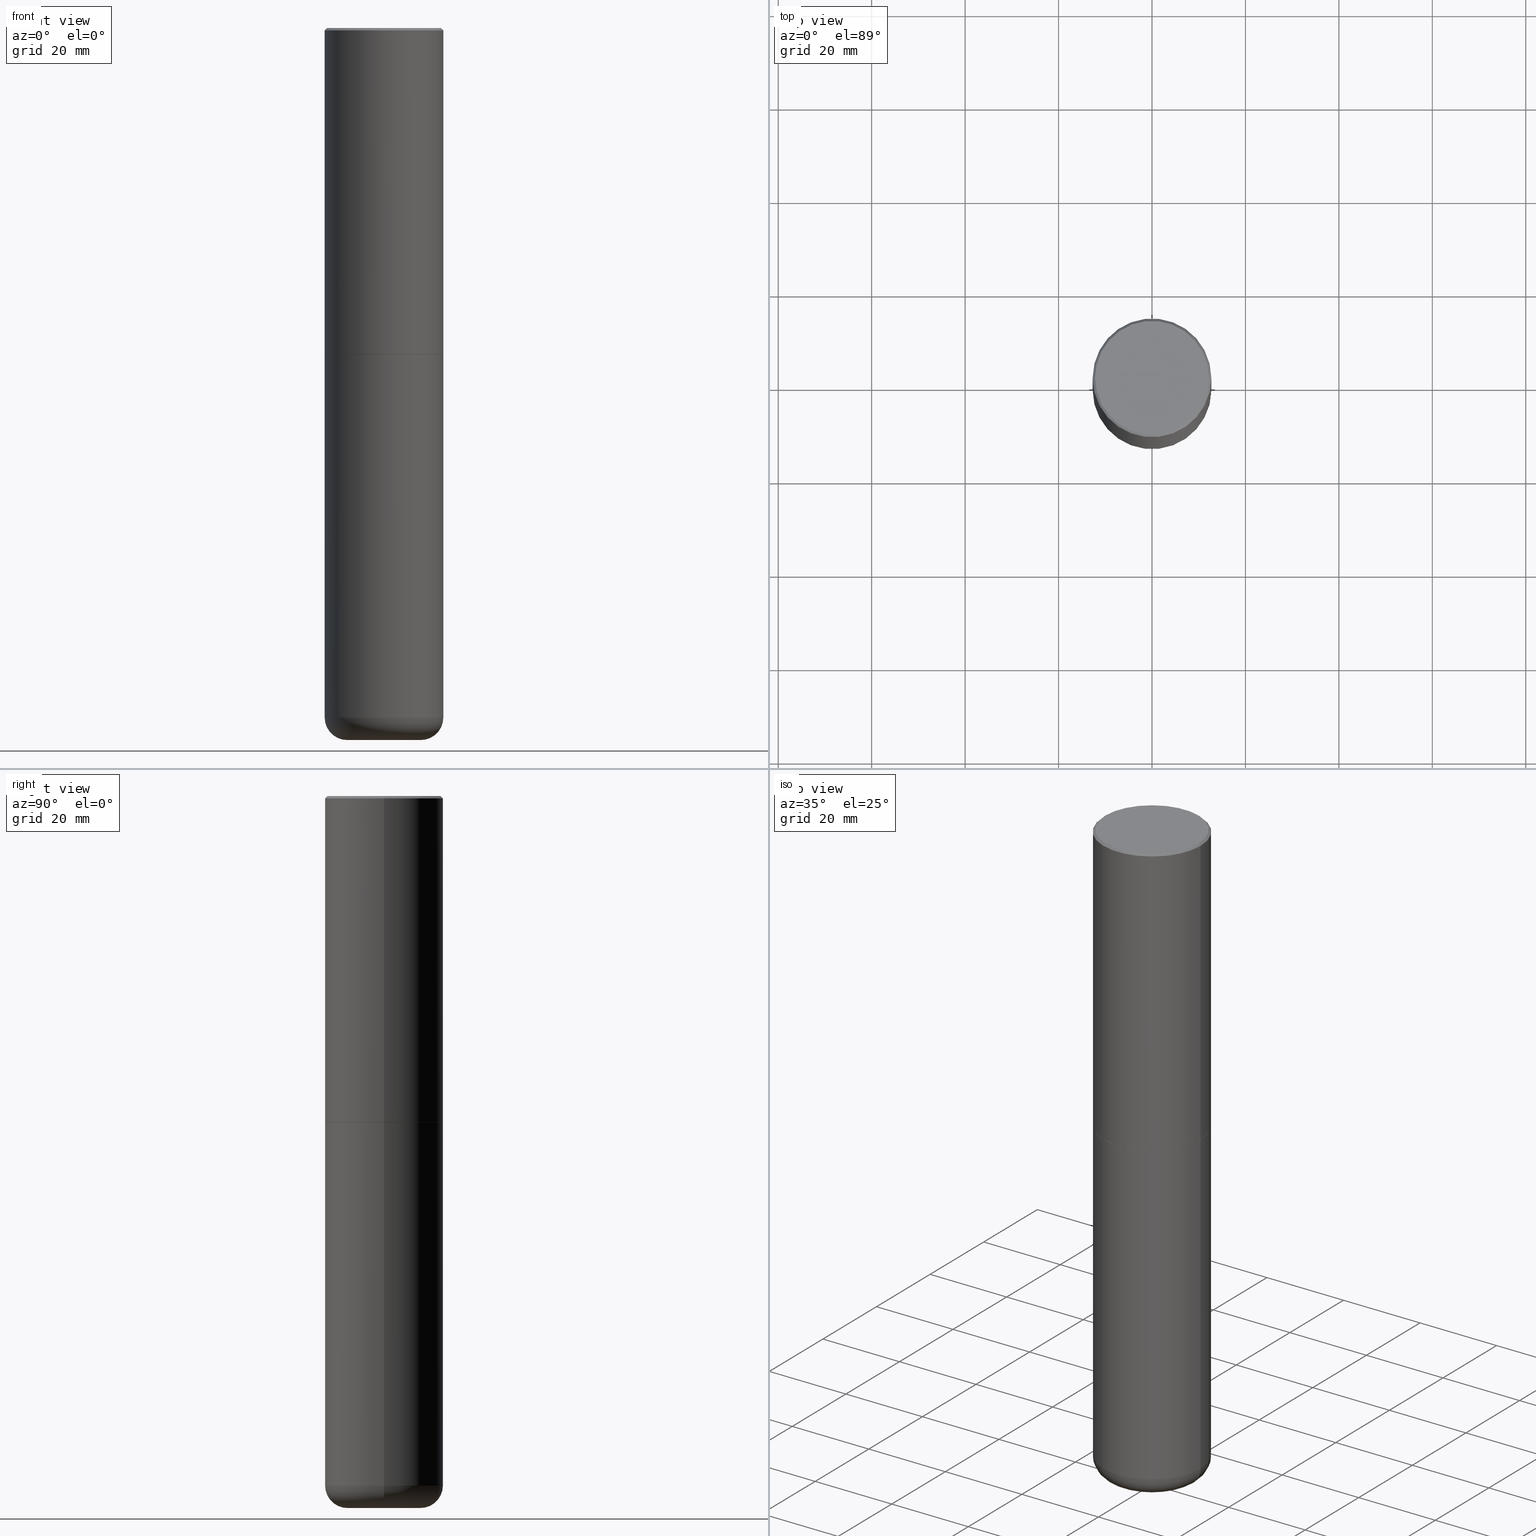
[diagram: canonical four-view strip — front | top / right | iso, engineering-drawing reading convention]
A machine part, canonical four-view strip (front | top / right | iso — engineering-drawing reading convention). The complete STEP part file that produces these views, byte-faithful:
ISO-10303-21;
HEADER;
FILE_DESCRIPTION (( 'STEP AP203' ),
    '1' );
FILE_NAME ('35743.STEP',
    '2022-11-02T20:59:04',
    ( '' ),
    ( '' ),
    'SwSTEP 2.0',
    'SolidWorks 2022',
    '' );
FILE_SCHEMA (( 'CONFIG_CONTROL_DESIGN' ));
ENDSEC;

DATA;
#1 = ADVANCED_FACE ( 'NONE', ( #123 ), #99, .F. ) ;
#2 = DIRECTION ( 'NONE',  ( 1.000000000000000000, -6.982962677686269077E-15, 4.883557194083113462E-29 ) ) ;
#3 = ADVANCED_FACE ( 'NONE', ( #47 ), #91, .T. ) ;
#4 = DIRECTION ( 'NONE',  ( -1.000000000000000000, 6.982962677686266711E-15, 0.000000000000000000 ) ) ;
#5 = EDGE_LOOP ( 'NONE', ( #369, #324, #269, #42 ) ) ;
#6 = CONICAL_SURFACE ( 'NONE', #389, 0.2550119582553103115, 1.535889741755007698 ) ;
#7 = DIRECTION ( 'NONE',  ( 1.000000000000000000, -6.982962677686266711E-15, 4.876176775795935793E-29 ) ) ;
#8 = AXIS2_PLACEMENT_3D ( 'NONE', #250, #162, #203 ) ;
#9 = ORIENTED_EDGE ( 'NONE', *, *, #283, .T. ) ;
#10 = CARTESIAN_POINT ( 'NONE',  ( 0.000000000000000000, 0.000000000000000000, 0.000000000000000000 ) ) ;
#11 = CYLINDRICAL_SURFACE ( 'NONE', #425, 0.4999999999999995004 ) ;
#12 = DIRECTION ( 'NONE',  ( -1.000000000000000000, 6.982962677686266711E-15, 0.000000000000000000 ) ) ;
#13 = DIRECTION ( 'NONE',  ( 1.000000000000000000, -6.982962677686265133E-15, 0.000000000000000000 ) ) ;
#14 = AXIS2_PLACEMENT_3D ( 'NONE', #264, #378, #268 ) ;
#15 = CIRCLE ( 'NONE', #163, 0.5000000000000000000 ) ;
#16 = MANIFOLD_SOLID_BREP ( 'Body-Move/Copy2[1]', #59 ) ;
#17 = CC_DESIGN_APPROVAL ( #124, ( #293 ) ) ;
#18 = ADVANCED_FACE ( 'NONE', ( #352 ), #11, .T. ) ;
#19 = DIRECTION ( 'NONE',  ( 0.9999619230641714207, -6.890705306874752753E-15, -0.008726535498348361383 ) ) ;
#20 = EDGE_CURVE ( 'NONE', #288, #88, #236, .T. ) ;
#21 = EDGE_CURVE ( 'NONE', #255, #139, #158, .T. ) ;
#22 = EDGE_LOOP ( 'NONE', ( #441, #301, #184 ) ) ;
#23 = APPROVAL_STATUS ( 'not_yet_approved' ) ;
#24 = APPLICATION_CONTEXT ( 'configuration controlled 3d designs of mechanical parts and assemblies' ) ;
#25 = ORIENTED_EDGE ( 'NONE', *, *, #138, .F. ) ;
#26 = PERSON_AND_ORGANIZATION ( #190, #240 ) ;
#27 = AXIS2_PLACEMENT_3D ( 'NONE', #303, #181, #146 ) ;
#28 = APPLICATION_PROTOCOL_DEFINITION ( 'international standard', 'config_control_design', 1994, #86 ) ;
#29 = ORIENTED_EDGE ( 'NONE', *, *, #342, .F. ) ;
#30 = APPROVAL_DATE_TIME ( #290, #124 ) ;
#31 = ORIENTED_EDGE ( 'NONE', *, *, #113, .F. ) ;
#32 = DATE_TIME_ROLE ( 'classification_date' ) ;
#33 = EDGE_CURVE ( 'NONE', #139, #80, #307, .T. ) ;
#34 = ORIENTED_EDGE ( 'NONE', *, *, #411, .F. ) ;
#35 = EDGE_CURVE ( 'NONE', #145, #88, #328, .T. ) ;
#36 = VECTOR ( 'NONE', #51, 39.37007874015747433 ) ;
#37 = DIRECTION ( 'NONE',  ( -2.445468806185136877E-29, 3.491481338843145188E-15, 1.000000000000000000 ) ) ;
#38 = FACE_OUTER_BOUND ( 'NONE', #154, .T. ) ;
#39 = FACE_OUTER_BOUND ( 'NONE', #22, .T. ) ;
#40 = EDGE_CURVE ( 'NONE', #126, #334, #131, .T. ) ;
#41 = DIRECTION ( 'NONE',  ( 1.000000000000000000, -6.982962677686266711E-15, 0.000000000000000000 ) ) ;
#42 = ORIENTED_EDGE ( 'NONE', *, *, #488, .F. ) ;
#43 = AXIS2_PLACEMENT_3D ( 'NONE', #229, #481, #232 ) ;
#44 = CIRCLE ( 'NONE', #478, 0.3083419582553103000 ) ;
#45 = CARTESIAN_POINT ( 'NONE',  ( -0.5000000000000000000, -1.139083908121469718E-14, -5.810007234617806660 ) ) ;
#46 = CYLINDRICAL_SURFACE ( 'NONE', #197, 0.5000000000000000000 ) ;
#47 = FACE_OUTER_BOUND ( 'NONE', #355, .T. ) ;
#48 = DIRECTION ( 'NONE',  ( 1.000000000000000000, -6.982962677686269077E-15, 4.883557194083113462E-29 ) ) ;
#49 = VECTOR ( 'NONE', #19, 39.37007874015748854 ) ;
#50 = ORIENTED_EDGE ( 'NONE', *, *, #435, .F. ) ;
#51 = DIRECTION ( 'NONE',  ( -0.9993908270190957621, 6.856857904024550159E-15, -0.03489949670250330760 ) ) ;
#52 = CARTESIAN_POINT ( 'NONE',  ( 1.467167470649067006E-28, -2.094726308416916987E-14, -5.999534596140719600 ) ) ;
#53 = EDGE_CURVE ( 'NONE', #135, #482, #170, .T. ) ;
#54 = DIRECTION ( 'NONE',  ( 2.445468806185136597E-29, -3.491481338843145583E-15, -1.000000000000000000 ) ) ;
#55 = PLANE ( 'NONE',  #491 ) ;
#56 = DIRECTION ( 'NONE',  ( 0.9993908270190957621, -6.978169709227549377E-15, -0.03489949670250330760 ) ) ;
#57 = EDGE_CURVE ( 'NONE', #139, #126, #118, .T. ) ;
#58 = PRODUCT_DEFINITION_SHAPE ( 'NONE', 'NONE',  #351 ) ;
#59 = CLOSED_SHELL ( 'NONE', ( #1, #171, #219, #119, #429, #231, #204, #260, #433 ) ) ;
#60 = AXIS2_PLACEMENT_3D ( 'NONE', #200, #98, #93 ) ;
#61 = EDGE_CURVE ( 'NONE', #148, #470, #68, .T. ) ;
#62 = DIRECTION ( 'NONE',  ( -2.445468806185136877E-29, 3.491481338843145188E-15, 1.000000000000000000 ) ) ;
#63 = CARTESIAN_POINT ( 'NONE',  ( 0.4799999999999988165, -3.396558832296475394E-15, 1.707404996042524007E-17 ) ) ;
#64 = ORIENTED_EDGE ( 'NONE', *, *, #53, .T. ) ;
#65 = DATE_AND_TIME ( #254, #156 ) ;
#66 = EDGE_LOOP ( 'NONE', ( #216, #381, #363, #149 ) ) ;
#67 = DATE_AND_TIME ( #246, #150 ) ;
#68 = CIRCLE ( 'NONE', #43, 0.5000000000000000000 ) ;
#69 = EDGE_LOOP ( 'NONE', ( #50, #177, #367, #372 ) ) ;
#70 = CALENDAR_DATE ( 2022, 2, 11 ) ;
#71 =( NAMED_UNIT ( * ) PLANE_ANGLE_UNIT ( ) SI_UNIT ( $, .RADIAN. ) );
#72 = CARTESIAN_POINT ( 'NONE',  ( 0.5000000000000000000, -3.491481338843133355E-15, 2.438088387897967896E-29 ) ) ;
#73 = VERTEX_POINT ( 'NONE', #452 ) ;
#74 = CARTESIAN_POINT ( 'NONE',  ( 0.5000000000000000000, -2.377701317705487499E-14, -5.810007234617806660 ) ) ;
#75 = TOROIDAL_SURFACE ( 'NONE', #348, 0.3100000000000003864, 0.1900000000000002520 ) ;
#76 = CC_DESIGN_PERSON_AND_ORGANIZATION_ASSIGNMENT ( #434, #370, ( #94 ) ) ;
#77 = AXIS2_PLACEMENT_3D ( 'NONE', #249, #230, #407 ) ;
#78 = DIRECTION ( 'NONE',  ( 2.445468806185136597E-29, -3.491481338843145583E-15, -1.000000000000000000 ) ) ;
#79 = DIRECTION ( 'NONE',  ( -2.445468806185136597E-29, 3.491481338843145583E-15, 1.000000000000000000 ) ) ;
#80 = VERTEX_POINT ( 'NONE', #144 ) ;
#81 = DIRECTION ( 'NONE',  ( -2.445468806185136597E-29, 3.491481338843145583E-15, 1.000000000000000000 ) ) ;
#82 = VECTOR ( 'NONE', #56, 39.37007874015747433 ) ;
#83 = CARTESIAN_POINT ( 'NONE',  ( -0.2550119582553103115, -1.916652409730864930E-14, -5.999534596140719600 ) ) ;
#84 = ORIENTED_EDGE ( 'NONE', *, *, #35, .T. ) ;
#85 = DIRECTION ( 'NONE',  ( -0.9999619230641714207, 6.952228252019259966E-15, -0.008726535498348361383 ) ) ;
#86 = APPLICATION_CONTEXT ( 'configuration controlled 3d designs of mechanical parts and assemblies' ) ;
#87 = FACE_OUTER_BOUND ( 'NONE', #297, .T. ) ;
#88 = VERTEX_POINT ( 'NONE', #259 ) ;
#89 = EDGE_CURVE ( 'NONE', #470, #110, #296, .T. ) ;
#90 = EDGE_CURVE ( 'NONE', #470, #148, #396, .T. ) ;
#91 = CONICAL_SURFACE ( 'NONE', #336, 0.4999999999999990563, 0.7853981633974477239 ) ;
#92 = DIRECTION ( 'NONE',  ( -2.445468806185136597E-29, 3.491481338843145583E-15, 1.000000000000000000 ) ) ;
#93 = DIRECTION ( 'NONE',  ( 1.000000000000000000, -6.982962677686265133E-15, 0.000000000000000000 ) ) ;
#94 = PRODUCT_DEFINITION_FORMATION_WITH_SPECIFIED_SOURCE ( 'ANY', '', #208, .NOT_KNOWN. ) ;
#95 = DIRECTION ( 'NONE',  ( 1.000000000000000000, -6.982962677686266711E-15, 0.000000000000000000 ) ) ;
#96 = DIRECTION ( 'NONE',  ( -2.445468806185136597E-29, 3.491481338843145583E-15, 1.000000000000000000 ) ) ;
#97 = EDGE_CURVE ( 'NONE', #334, #126, #187, .T. ) ;
#98 = DIRECTION ( 'NONE',  ( -2.445468806185136597E-29, 3.491481338843145583E-15, 1.000000000000000000 ) ) ;
#99 = CONICAL_SURFACE ( 'NONE', #278, 0.3083419582553103000, 1.562069680534950544 ) ;
#100 = VECTOR ( 'NONE', #164, 39.37007874015748143 ) ;
#101 = PERSON_AND_ORGANIZATION ( #190, #240 ) ;
#102 = ORIENTED_EDGE ( 'NONE', *, *, #57, .T. ) ;
#103 =( CONVERSION_BASED_UNIT ( 'INCH', #371 ) LENGTH_UNIT ( ) NAMED_UNIT ( #345 ) );
#104 = ORIENTED_EDGE ( 'NONE', *, *, #97, .F. ) ;
#105 = APPROVAL_DATE_TIME ( #65, #366 ) ;
#106 = ORIENTED_EDGE ( 'NONE', *, *, #179, .F. ) ;
#107 = CONICAL_SURFACE ( 'NONE', #60, 0.4989999999999999991, 0.7853981633972775267 ) ;
#108 = DATE_TIME_ROLE ( 'creation_date' ) ;
#109 = CARTESIAN_POINT ( 'NONE',  ( -4.175405657340879278E-46, 5.961372681521788801E-32, 1.707404996040164512E-17 ) ) ;
#110 = VERTEX_POINT ( 'NONE', #151 ) ;
#111 = APPROVAL_STATUS ( 'not_yet_approved' ) ;
#112 = DIRECTION ( 'NONE',  ( 1.000000000000000000, -6.982962677686265133E-15, 0.000000000000000000 ) ) ;
#113 = EDGE_CURVE ( 'NONE', #88, #148, #314, .T. ) ;
#114 = CARTESIAN_POINT ( 'NONE',  ( 6.725039217009127883E-29, -9.601573681818654592E-15, -2.750000000000000888 ) ) ;
#115 = VERTEX_POINT ( 'NONE', #444 ) ;
#116 = DIRECTION ( 'NONE',  ( 1.000000000000000000, -6.982962677686269866E-15, 0.000000000000000000 ) ) ;
#117 = ORIENTED_EDGE ( 'NONE', *, *, #418, .F. ) ;
#118 = LINE ( 'NONE', #147, #196 ) ;
#119 = ADVANCED_FACE ( 'NONE', ( #39 ), #6, .F. ) ;
#120 = CARTESIAN_POINT ( 'NONE',  ( 1.420819145596781617E-28, -2.028553183821174163E-14, -5.810007234617806660 ) ) ;
#121 = CIRCLE ( 'NONE', #455, 0.2550119582553103115 ) ;
#122 = CARTESIAN_POINT ( 'NONE',  ( 3.491481338843200408E-15, 0.4999999999999903411, -2.750000000000002220 ) ) ;
#123 = FACE_OUTER_BOUND ( 'NONE', #66, .T. ) ;
#124 = APPROVAL ( #111, 'UNSPECIFIED' ) ;
#125 = DIRECTION ( 'NONE',  ( 0.7071067811865471286, -7.319954787623254468E-15, -0.7071067811865479058 ) ) ;
#126 = VERTEX_POINT ( 'NONE', #447 ) ;
#127 = AXIS2_PLACEMENT_3D ( 'NONE', #331, #376, #409 ) ;
#128 = CARTESIAN_POINT ( 'NONE',  ( 1.467281283711081734E-28, -2.094888803305886955E-14, -5.999999999999999112 ) ) ;
#129 = DIRECTION ( 'NONE',  ( 1.000000000000000000, -6.982962677686263555E-15, 0.000000000000000000 ) ) ;
#130 = CARTESIAN_POINT ( 'NONE',  ( -0.5000000000000000000, 3.552713678800500929E-15, -2.459467545127452891E-29 ) ) ;
#131 = CIRCLE ( 'NONE', #226, 0.4999999999999990563 ) ;
#132 = AXIS2_PLACEMENT_3D ( 'NONE', #267, #483, #228 ) ;
#133 = ORIENTED_EDGE ( 'NONE', *, *, #90, .T. ) ;
#134 = CYLINDRICAL_SURFACE ( 'NONE', #77, 0.4999999999999995004 ) ;
#135 = VERTEX_POINT ( 'NONE', #186 ) ;
#136 = DATE_AND_TIME ( #142, #207 ) ;
#137 = EDGE_CURVE ( 'NONE', #395, #288, #121, .T. ) ;
#138 = EDGE_CURVE ( 'NONE', #287, #255, #247, .T. ) ;
#139 = VERTEX_POINT ( 'NONE', #377 ) ;
#140 = SHAPE_DEFINITION_REPRESENTATION ( #58, #454 ) ;
#141 = ORIENTED_EDGE ( 'NONE', *, *, #193, .F. ) ;
#142 = CALENDAR_DATE ( 2022, 2, 11 ) ;
#143 = LOCAL_TIME ( 16, 59, 4.000000000000000000, #475 ) ;
#144 = CARTESIAN_POINT ( 'NONE',  ( -0.5000000000000000000, -1.281242234827831779E-15, -2.749000000000000554 ) ) ;
#145 = VERTEX_POINT ( 'NONE', #337 ) ;
#146 = DIRECTION ( 'NONE',  ( 1.000000000000000000, -6.982962677686265133E-15, 0.000000000000000000 ) ) ;
#147 = CARTESIAN_POINT ( 'NONE',  ( 0.4999999999999995004, -3.491481338843130200E-15, 2.438088387897965374E-29 ) ) ;
#148 = VERTEX_POINT ( 'NONE', #45 ) ;
#149 = ORIENTED_EDGE ( 'NONE', *, *, #20, .F. ) ;
#150 = LOCAL_TIME ( 16, 59, 4.000000000000000000, #349 ) ;
#151 = CARTESIAN_POINT ( 'NONE',  ( 0.5000000000000000000, -1.309305502066178637E-14, -2.750000000000000444 ) ) ;
#152 = PLANE ( 'NONE',  #281 ) ;
#153 = DIRECTION ( 'NONE',  ( -2.438088387897960049E-29, 3.491481338843145188E-15, 1.000000000000000000 ) ) ;
#154 = EDGE_LOOP ( 'NONE', ( #84, #321, #220, #106 ) ) ;
#155 = VECTOR ( 'NONE', #85, 39.37007874015748854 ) ;
#156 = LOCAL_TIME ( 16, 59, 4.000000000000000000, #320 ) ;
#157 = APPROVAL_PERSON_ORGANIZATION ( #26, #124, #368 ) ;
#158 = LINE ( 'NONE', #424, #239 ) ;
#159 = DIRECTION ( 'NONE',  ( -2.445468806185136597E-29, 3.491481338843145583E-15, 1.000000000000000000 ) ) ;
#160 = CARTESIAN_POINT ( 'NONE',  ( 1.467281283711081734E-28, -2.094888803305886955E-14, -5.999999999999999112 ) ) ;
#161 = CYLINDRICAL_SURFACE ( 'NONE', #465, 0.5000000000000000000 ) ;
#162 = DIRECTION ( 'NONE',  ( -2.445468806185136597E-29, 3.491481338843145583E-15, 1.000000000000000000 ) ) ;
#163 = AXIS2_PLACEMENT_3D ( 'NONE', #365, #480, #211 ) ;
#164 = DIRECTION ( 'NONE',  ( -0.7071067811864267805, 7.493145998869918709E-15, 0.7071067811866682540 ) ) ;
#165 = FACE_OUTER_BOUND ( 'NONE', #5, .T. ) ;
#166 = CC_DESIGN_PERSON_AND_ORGANIZATION_ASSIGNMENT ( #213, #439, ( #351 ) ) ;
#167 = LINE ( 'NONE', #130, #319 ) ;
#168 = EDGE_LOOP ( 'NONE', ( #326, #210, #450, #432 ) ) ;
#169 = APPROVAL_ROLE ( '' ) ;
#170 = CIRCLE ( 'NONE', #214, 0.4799999999999988165 ) ;
#171 = ADVANCED_FACE ( 'NONE', ( #38 ), #75, .T. ) ;
#172 =( GEOMETRIC_REPRESENTATION_CONTEXT ( 3 ) GLOBAL_UNCERTAINTY_ASSIGNED_CONTEXT ( ( #462 ) ) GLOBAL_UNIT_ASSIGNED_CONTEXT ( ( #103, #71, #443 ) ) REPRESENTATION_CONTEXT ( 'NONE', 'WORKASPACE' ) );
#173 = ORIENTED_EDGE ( 'NONE', *, *, #89, .T. ) ;
#174 = CARTESIAN_POINT ( 'NONE',  ( -0.4989999999999999991, -6.055965430375753882E-15, -2.750000000000000888 ) ) ;
#175 = EDGE_LOOP ( 'NONE', ( #141, #403, #383, #406 ) ) ;
#176 = CARTESIAN_POINT ( 'NONE',  ( 0.000000000000000000, 0.000000000000000000, 0.000000000000000000 ) ) ;
#177 = ORIENTED_EDGE ( 'NONE', *, *, #137, .T. ) ;
#178 = PERSON_AND_ORGANIZATION_ROLE ( 'design_supplier' ) ;
#179 = EDGE_CURVE ( 'NONE', #145, #470, #397, .T. ) ;
#180 = ORIENTED_EDGE ( 'NONE', *, *, #466, .F. ) ;
#181 = DIRECTION ( 'NONE',  ( -2.445468806185136597E-29, 3.491481338843145583E-15, 1.000000000000000000 ) ) ;
#182 = DIRECTION ( 'NONE',  ( -2.445468806185136597E-29, 3.491481338843145583E-15, 1.000000000000000000 ) ) ;
#183 = CARTESIAN_POINT ( 'NONE',  ( 1.467167470649067006E-28, -2.094726308416916987E-14, -5.999534596140719600 ) ) ;
#184 = ORIENTED_EDGE ( 'NONE', *, *, #332, .F. ) ;
#185 = FACE_OUTER_BOUND ( 'NONE', #168, .T. ) ;
#186 = CARTESIAN_POINT ( 'NONE',  ( -0.4799999999999988165, 3.386736898677831703E-15, 1.707404996037808406E-17 ) ) ;
#187 = CIRCLE ( 'NONE', #464, 0.4999999999999990563 ) ;
#188 = CONICAL_SURFACE ( 'NONE', #27, 0.4989999999999999991, 0.7853981633972775267 ) ;
#189 = ORIENTED_EDGE ( 'NONE', *, *, #89, .F. ) ;
#190 = PERSON ( 'UNSPECIFIED', 'UNSPECIFIED', 'UNSPECIFIED', ('UNSPECIFIED'), ('UNSPECIFIED'), ('UNSPECIFIED') ) ;
#191 = FACE_OUTER_BOUND ( 'NONE', #175, .T. ) ;
#192 = ORIENTED_EDGE ( 'NONE', *, *, #317, .T. ) ;
#193 = EDGE_CURVE ( 'NONE', #482, #126, #460, .T. ) ;
#194 = EDGE_CURVE ( 'NONE', #115, #288, #202, .T. ) ;
#195 = CARTESIAN_POINT ( 'NONE',  ( 0.000000000000000000, 0.000000000000000000, 0.000000000000000000 ) ) ;
#196 = VECTOR ( 'NONE', #223, 39.37007874015748143 ) ;
#197 = AXIS2_PLACEMENT_3D ( 'NONE', #276, #234, #7 ) ;
#198 = FACE_OUTER_BOUND ( 'NONE', #263, .T. ) ;
#199 = DIRECTION ( 'NONE',  ( 2.445468806185136597E-29, -3.491481338843145583E-15, -1.000000000000000000 ) ) ;
#200 = CARTESIAN_POINT ( 'NONE',  ( 6.725039217009127883E-29, -9.601573681818654592E-15, -2.750000000000000888 ) ) ;
#201 = CARTESIAN_POINT ( 'NONE',  ( 4.890937612370322204E-31, -6.982962677686361867E-17, -0.02000000000000020164 ) ) ;
#202 = LINE ( 'NONE', #458, #36 ) ;
#203 = DIRECTION ( 'NONE',  ( 1.000000000000000000, -6.982962677686266711E-15, 0.000000000000000000 ) ) ;
#204 = ADVANCED_FACE ( 'NONE', ( #87 ), #46, .T. ) ;
#205 = CONICAL_SURFACE ( 'NONE', #329, 0.4999999999999990563, 0.7853981633974477239 ) ;
#206 = CARTESIAN_POINT ( 'NONE',  ( 0.3083419582553103000, -2.306426742029837879E-14, -5.999999999999999112 ) ) ;
#207 = LOCAL_TIME ( 16, 59, 4.000000000000000000, #400 ) ;
#208 = PRODUCT ( '35743', '35743', '', ( #392 ) ) ;
#209 = LINE ( 'NONE', #360, #379 ) ;
#210 = ORIENTED_EDGE ( 'NONE', *, *, #300, .T. ) ;
#211 = DIRECTION ( 'NONE',  ( 1.000000000000000000, -6.982962677686266711E-15, 0.000000000000000000 ) ) ;
#212 = ORIENTED_EDGE ( 'NONE', *, *, #61, .T. ) ;
#213 = PERSON_AND_ORGANIZATION ( #190, #240 ) ;
#214 = AXIS2_PLACEMENT_3D ( 'NONE', #109, #410, #484 ) ;
#215 = VECTOR ( 'NONE', #125, 39.37007874015748143 ) ;
#216 = ORIENTED_EDGE ( 'NONE', *, *, #332, .T. ) ;
#217 = SECURITY_CLASSIFICATION_LEVEL ( 'unclassified' ) ;
#218 = APPLICATION_PROTOCOL_DEFINITION ( 'international standard', 'config_control_design', 1994, #24 ) ;
#219 = ADVANCED_FACE ( 'NONE', ( #453 ), #161, .T. ) ;
#220 = ORIENTED_EDGE ( 'NONE', *, *, #90, .F. ) ;
#221 = APPROVAL_DATE_TIME ( #67, #394 ) ;
#222 = DATE_AND_TIME ( #325, #302 ) ;
#223 = DIRECTION ( 'NONE',  ( -2.445468806185136877E-29, 3.491481338843145188E-15, 1.000000000000000000 ) ) ;
#224 = ORIENTED_EDGE ( 'NONE', *, *, #137, .F. ) ;
#225 = DIRECTION ( 'NONE',  ( -1.000000000000000000, 6.982962677686269866E-15, 0.000000000000000000 ) ) ;
#226 = AXIS2_PLACEMENT_3D ( 'NONE', #359, #333, #41 ) ;
#227 = CIRCLE ( 'NONE', #271, 0.4989999999999999991 ) ;
#228 = DIRECTION ( 'NONE',  ( 1.000000000000000000, -6.982962677686267499E-15, 4.876431871984425487E-29 ) ) ;
#229 = CARTESIAN_POINT ( 'NONE',  ( 1.420819145596781617E-28, -2.028553183821174163E-14, -5.810007234617806660 ) ) ;
#230 = DIRECTION ( 'NONE',  ( -2.445468806185136597E-29, 3.491481338843145583E-15, 1.000000000000000000 ) ) ;
#231 = ADVANCED_FACE ( 'NONE', ( #346 ), #55, .F. ) ;
#232 = DIRECTION ( 'NONE',  ( 1.000000000000000000, -6.982962677686262766E-15, 0.000000000000000000 ) ) ;
#233 = DIRECTION ( 'NONE',  ( 1.000000000000000000, -6.982962677686266711E-15, 0.000000000000000000 ) ) ;
#234 = DIRECTION ( 'NONE',  ( -2.445468806185136597E-29, 3.491481338843145583E-15, 1.000000000000000000 ) ) ;
#235 = FACE_OUTER_BOUND ( 'NONE', #361, .T. ) ;
#236 = LINE ( 'NONE', #417, #155 ) ;
#237 = DIRECTION ( 'NONE',  ( 2.438088387897960049E-29, -3.491481338843145188E-15, -1.000000000000000000 ) ) ;
#238 = ORIENTED_EDGE ( 'NONE', *, *, #40, .F. ) ;
#239 = VECTOR ( 'NONE', #311, 39.37007874015748143 ) ;
#240 = ORGANIZATION ( 'UNSPECIFIED', 'UNSPECIFIED', '' ) ;
#241 = DIRECTION ( 'NONE',  ( 1.000000000000000000, -6.982962677686266711E-15, 0.000000000000000000 ) ) ;
#242 = DIRECTION ( 'NONE',  ( -2.445468806185136597E-29, 3.491481338843145583E-15, 1.000000000000000000 ) ) ;
#243 = CARTESIAN_POINT ( 'NONE',  ( 0.4999999999999990563, -3.500078625662622769E-15, -0.02000000000000020164 ) ) ;
#244 = CARTESIAN_POINT ( 'NONE',  ( 0.2550119582553103115, -2.269677211318752445E-14, -5.999534596140719600 ) ) ;
#245 = ADVANCED_FACE ( 'NONE', ( #353 ), #152, .F. ) ;
#246 = CALENDAR_DATE ( 2022, 2, 11 ) ;
#247 = CIRCLE ( 'NONE', #285, 0.4989999999999999991 ) ;
#248 = APPROVAL_PERSON_ORGANIZATION ( #323, #366, #169 ) ;
#249 = CARTESIAN_POINT ( 'NONE',  ( 0.000000000000000000, 0.000000000000000000, 0.000000000000000000 ) ) ;
#250 = CARTESIAN_POINT ( 'NONE',  ( 6.725039217009125641E-29, -9.601573681818653015E-15, -2.750000000000000444 ) ) ;
#251 = CC_DESIGN_PERSON_AND_ORGANIZATION_ASSIGNMENT ( #442, #178, ( #94 ) ) ;
#252 = PERSON_AND_ORGANIZATION_ROLE ( 'design_owner' ) ;
#253 = ORIENTED_EDGE ( 'NONE', *, *, #488, .T. ) ;
#254 = CALENDAR_DATE ( 2022, 2, 11 ) ;
#255 = VERTEX_POINT ( 'NONE', #416 ) ;
#256 = CONICAL_SURFACE ( 'NONE', #414, 0.3083419582553103000, 1.562069680534950544 ) ;
#257 = ORIENTED_EDGE ( 'NONE', *, *, #283, .F. ) ;
#258 = PERSON_AND_ORGANIZATION ( #190, #240 ) ;
#259 = CARTESIAN_POINT ( 'NONE',  ( -0.3083419582553103000, -1.774540240339328316E-14, -5.999999999999999112 ) ) ;
#260 = ADVANCED_FACE ( 'NONE', ( #235 ), #358, .T. ) ;
#261 = EDGE_LOOP ( 'NONE', ( #34, #299, #224 ) ) ;
#262 = DIRECTION ( 'NONE',  ( 1.000000000000000000, 0.000000000000000000, 0.000000000000000000 ) ) ;
#263 = EDGE_LOOP ( 'NONE', ( #385, #25 ) ) ;
#264 = CARTESIAN_POINT ( 'NONE',  ( -0.3100000000000003864, -1.808284935735543068E-14, -5.810007234617806660 ) ) ;
#265 = AXIS2_PLACEMENT_3D ( 'NONE', #405, #81, #304 ) ;
#266 = CIRCLE ( 'NONE', #315, 0.5000000000000000000 ) ;
#267 = CARTESIAN_POINT ( 'NONE',  ( -4.175405657340879278E-46, 5.961372681521788801E-32, 1.707404996040164512E-17 ) ) ;
#268 = DIRECTION ( 'NONE',  ( -1.000000000000000000, 7.105427357600996337E-15, 0.000000000000000000 ) ) ;
#269 = ORIENTED_EDGE ( 'NONE', *, *, #21, .T. ) ;
#270 = ADVANCED_FACE ( 'NONE', ( #198 ), #357, .F. ) ;
#271 = AXIS2_PLACEMENT_3D ( 'NONE', #335, #182, #13 ) ;
#272 = ORIENTED_EDGE ( 'NONE', *, *, #418, .T. ) ;
#273 = DIRECTION ( 'NONE',  ( 2.438088387897960049E-29, -3.491481338843145188E-15, -1.000000000000000000 ) ) ;
#274 = FACE_OUTER_BOUND ( 'NONE', #69, .T. ) ;
#275 = CARTESIAN_POINT ( 'NONE',  ( 6.722593748202942280E-29, -9.598082200479810007E-15, -2.749000000000000554 ) ) ;
#276 = CARTESIAN_POINT ( 'NONE',  ( 0.000000000000000000, 0.000000000000000000, 0.000000000000000000 ) ) ;
#277 = DIRECTION ( 'NONE',  ( -1.000000000000000000, 6.982962677686263555E-15, 0.000000000000000000 ) ) ;
#278 = AXIS2_PLACEMENT_3D ( 'NONE', #160, #54, #277 ) ;
#279 = AXIS2_PLACEMENT_3D ( 'NONE', #461, #242, #426 ) ;
#280 = CC_DESIGN_PERSON_AND_ORGANIZATION_ASSIGNMENT ( #327, #322, ( #293 ) ) ;
#281 = AXIS2_PLACEMENT_3D ( 'NONE', #420, #237, #456 ) ;
#282 = DIRECTION ( 'NONE',  ( -1.000000000000000000, 6.982962677686263555E-15, 0.000000000000000000 ) ) ;
#283 = EDGE_CURVE ( 'NONE', #110, #73, #266, .T. ) ;
#284 = DIRECTION ( 'NONE',  ( 2.445468806185136597E-29, -3.491481338843145583E-15, -1.000000000000000000 ) ) ;
#285 = AXIS2_PLACEMENT_3D ( 'NONE', #114, #79, #112 ) ;
#286 = AXIS2_PLACEMENT_3D ( 'NONE', #52, #284, #467 ) ;
#287 = VERTEX_POINT ( 'NONE', #313 ) ;
#288 = VERTEX_POINT ( 'NONE', #83 ) ;
#289 = EDGE_LOOP ( 'NONE', ( #9, #272 ) ) ;
#290 = DATE_AND_TIME ( #70, #143 ) ;
#291 = ADVANCED_FACE ( 'NONE', ( #191 ), #205, .T. ) ;
#292 = CARTESIAN_POINT ( 'NONE',  ( 0.3100000000000003864, -2.245025026829448810E-14, -5.810007234617806660 ) ) ;
#293 = SECURITY_CLASSIFICATION ( '', '', #217 ) ;
#294 = EDGE_LOOP ( 'NONE', ( #64, #192 ) ) ;
#295 = DIRECTION ( 'NONE',  ( 0.000000000000000000, 0.000000000000000000, 1.000000000000000000 ) ) ;
#296 = LINE ( 'NONE', #72, #471 ) ;
#297 = EDGE_LOOP ( 'NONE', ( #318, #212, #173, #117 ) ) ;
#298 = CARTESIAN_POINT ( 'NONE',  ( 4.890937612370322204E-31, -6.982962677686361867E-17, -0.02000000000000020164 ) ) ;
#299 = ORIENTED_EDGE ( 'NONE', *, *, #194, .T. ) ;
#300 = EDGE_CURVE ( 'NONE', #287, #80, #306, .T. ) ;
#301 = ORIENTED_EDGE ( 'NONE', *, *, #411, .T. ) ;
#302 = LOCAL_TIME ( 16, 59, 4.000000000000000000, #398 ) ;
#303 = CARTESIAN_POINT ( 'NONE',  ( 6.725039217009127883E-29, -9.601573681818654592E-15, -2.750000000000000888 ) ) ;
#304 = DIRECTION ( 'NONE',  ( 1.000000000000000000, -6.982962677686262766E-15, 0.000000000000000000 ) ) ;
#305 = ORIENTED_EDGE ( 'NONE', *, *, #61, .F. ) ;
#306 = LINE ( 'NONE', #174, #100 ) ;
#307 = CIRCLE ( 'NONE', #430, 0.5000000000000000000 ) ;
#308 = CONICAL_SURFACE ( 'NONE', #286, 0.2550119582553103115, 1.535889741755007698 ) ;
#309 = DIRECTION ( 'NONE',  ( 1.000000000000000000, -6.982962677686267499E-15, 4.876176775795935793E-29 ) ) ;
#310 = DIRECTION ( 'NONE',  ( 1.000000000000000000, -6.982962677686265922E-15, 4.876176775795935793E-29 ) ) ;
#311 = DIRECTION ( 'NONE',  ( 0.7071067811864267805, -2.468850131080992517E-15, 0.7071067811866682540 ) ) ;
#312 = EDGE_CURVE ( 'NONE', #88, #145, #44, .T. ) ;
#313 = CARTESIAN_POINT ( 'NONE',  ( -0.4989999999999999991, -6.050666976027531480E-15, -2.750000000000000888 ) ) ;
#314 = CIRCLE ( 'NONE', #14, 0.1900000000000003075 ) ;
#315 = AXIS2_PLACEMENT_3D ( 'NONE', #413, #92, #241 ) ;
#316 = ADVANCED_FACE ( 'NONE', ( #386 ), #134, .T. ) ;
#317 = EDGE_CURVE ( 'NONE', #482, #135, #338, .T. ) ;
#318 = ORIENTED_EDGE ( 'NONE', *, *, #451, .F. ) ;
#319 = VECTOR ( 'NONE', #62, 39.37007874015748143 ) ;
#320 = COORDINATED_UNIVERSAL_TIME_OFFSET ( 5, 0, .BEHIND. ) ;
#321 = ORIENTED_EDGE ( 'NONE', *, *, #113, .T. ) ;
#322 = PERSON_AND_ORGANIZATION_ROLE ( 'classification_officer' ) ;
#323 = PERSON_AND_ORGANIZATION ( #190, #240 ) ;
#324 = ORIENTED_EDGE ( 'NONE', *, *, #138, .T. ) ;
#325 = CALENDAR_DATE ( 2022, 2, 11 ) ;
#326 = ORIENTED_EDGE ( 'NONE', *, *, #404, .T. ) ;
#327 = PERSON_AND_ORGANIZATION ( #190, #240 ) ;
#328 = CIRCLE ( 'NONE', #279, 0.3083419582553103000 ) ;
#329 = AXIS2_PLACEMENT_3D ( 'NONE', #380, #343, #4 ) ;
#330 = ORIENTED_EDGE ( 'NONE', *, *, #179, .T. ) ;
#331 = CARTESIAN_POINT ( 'NONE',  ( 1.467167470649067006E-28, -2.094726308416916987E-14, -5.999534596140719600 ) ) ;
#332 = EDGE_CURVE ( 'NONE', #288, #395, #340, .T. ) ;
#333 = DIRECTION ( 'NONE',  ( -2.445468806185136597E-29, 3.491481338843145583E-15, 1.000000000000000000 ) ) ;
#334 = VERTEX_POINT ( 'NONE', #373 ) ;
#335 = CARTESIAN_POINT ( 'NONE',  ( 6.725039217009127883E-29, -9.601573681818654592E-15, -2.750000000000000888 ) ) ;
#336 = AXIS2_PLACEMENT_3D ( 'NONE', #201, #199, #12 ) ;
#337 = CARTESIAN_POINT ( 'NONE',  ( 0.3083419582553103000, -2.310202841952039930E-14, -5.999999999999999112 ) ) ;
#338 = CIRCLE ( 'NONE', #132, 0.4799999999999988165 ) ;
#339 = MANIFOLD_SOLID_BREP ( 'Body-Move/Copy2[2]', #490 ) ;
#340 = CIRCLE ( 'NONE', #127, 0.2550119582553103115 ) ;
#341 = DIRECTION ( 'NONE',  ( -2.445468806185136597E-29, 3.491481338843145583E-15, 1.000000000000000000 ) ) ;
#342 = EDGE_CURVE ( 'NONE', #80, #334, #489, .T. ) ;
#343 = DIRECTION ( 'NONE',  ( 2.445468806185136597E-29, -3.491481338843145583E-15, -1.000000000000000000 ) ) ;
#344 = EDGE_LOOP ( 'NONE', ( #399, #459, #238, #476 ) ) ;
#345 = DIMENSIONAL_EXPONENTS ( 1.000000000000000000, 0.000000000000000000, 0.000000000000000000, 0.000000000000000000, 0.000000000000000000, 0.000000000000000000, 0.000000000000000000 ) ;
#346 = FACE_OUTER_BOUND ( 'NONE', #289, .T. ) ;
#347 = DIRECTION ( 'NONE',  ( -2.445468806185136597E-29, 3.491481338843145583E-15, 1.000000000000000000 ) ) ;
#348 = AXIS2_PLACEMENT_3D ( 'NONE', #412, #341, #2 ) ;
#349 = COORDINATED_UNIVERSAL_TIME_OFFSET ( 5, 0, .BEHIND. ) ;
#350 = CARTESIAN_POINT ( 'NONE',  ( 6.725039217009127883E-29, -9.601573681818654592E-15, -2.750000000000000888 ) ) ;
#351 = PRODUCT_DEFINITION ( 'UNKNOWN', '', #94, #362 ) ;
#352 = FACE_OUTER_BOUND ( 'NONE', #393, .T. ) ;
#353 = FACE_OUTER_BOUND ( 'NONE', #294, .T. ) ;
#354 = DIRECTION ( 'NONE',  ( 2.445468806185136597E-29, -3.491481338843145583E-15, -1.000000000000000000 ) ) ;
#355 = EDGE_LOOP ( 'NONE', ( #477, #485, #375, #180 ) ) ;
#356 = ADVANCED_FACE ( 'NONE', ( #185 ), #188, .T. ) ;
#357 = PLANE ( 'NONE',  #457 ) ;
#358 = TOROIDAL_SURFACE ( 'NONE', #438, 0.3100000000000003864, 0.1900000000000002520 ) ;
#359 = CARTESIAN_POINT ( 'NONE',  ( 4.890937612370322204E-31, -6.982962677686361867E-17, -0.02000000000000020164 ) ) ;
#360 = CARTESIAN_POINT ( 'NONE',  ( -0.4999999999999990563, 3.421651712066262957E-15, -0.02000000000000020164 ) ) ;
#361 = EDGE_LOOP ( 'NONE', ( #31, #437, #330, #305 ) ) ;
#362 = DESIGN_CONTEXT ( 'detailed design', #24, 'design' ) ;
#363 = ORIENTED_EDGE ( 'NONE', *, *, #312, .F. ) ;
#364 = APPROVAL_PERSON_ORGANIZATION ( #258, #394, #419 ) ;
#365 = CARTESIAN_POINT ( 'NONE',  ( 6.722593748202942280E-29, -9.598082200479810007E-15, -2.749000000000000554 ) ) ;
#366 = APPROVAL ( #23, 'UNSPECIFIED' ) ;
#367 = ORIENTED_EDGE ( 'NONE', *, *, #20, .T. ) ;
#368 = APPROVAL_ROLE ( '' ) ;
#369 = ORIENTED_EDGE ( 'NONE', *, *, #300, .F. ) ;
#370 = PERSON_AND_ORGANIZATION_ROLE ( 'creator' ) ;
#371 = LENGTH_MEASURE_WITH_UNIT ( LENGTH_MEASURE( 0.02539999999999999897 ), #468 );
#372 = ORIENTED_EDGE ( 'NONE', *, *, #35, .F. ) ;
#373 = CARTESIAN_POINT ( 'NONE',  ( -0.4999999999999990563, 3.421651712066262957E-15, -0.02000000000000020164 ) ) ;
#374 = CARTESIAN_POINT ( 'NONE',  ( 1.467167470649067006E-28, -2.094726308416916987E-14, -5.999534596140719600 ) ) ;
#375 = ORIENTED_EDGE ( 'NONE', *, *, #40, .T. ) ;
#376 = DIRECTION ( 'NONE',  ( -2.445468806185136597E-29, 3.491481338843145583E-15, 1.000000000000000000 ) ) ;
#377 = CARTESIAN_POINT ( 'NONE',  ( 0.5000000000000000000, -1.308956353932294336E-14, -2.749000000000000554 ) ) ;
#378 = DIRECTION ( 'NONE',  ( 7.105427357601001859E-15, 1.000000000000000000, -3.491481338843145583E-15 ) ) ;
#379 = VECTOR ( 'NONE', #436, 39.37007874015748143 ) ;
#380 = CARTESIAN_POINT ( 'NONE',  ( 4.890937612370322204E-31, -6.982962677686361867E-17, -0.02000000000000020164 ) ) ;
#381 = ORIENTED_EDGE ( 'NONE', *, *, #435, .T. ) ;
#382 = PRODUCT_RELATED_PRODUCT_CATEGORY ( 'detail', '', ( #208 ) ) ;
#383 = ORIENTED_EDGE ( 'NONE', *, *, #466, .T. ) ;
#384 = DIRECTION ( 'NONE',  ( -1.000000000000000000, 6.982962677686265922E-15, -4.876176775795935793E-29 ) ) ;
#385 = ORIENTED_EDGE ( 'NONE', *, *, #404, .F. ) ;
#386 = FACE_OUTER_BOUND ( 'NONE', #344, .T. ) ;
#387 = FACE_OUTER_BOUND ( 'NONE', #261, .T. ) ;
#388 = CC_DESIGN_DATE_AND_TIME_ASSIGNMENT ( #222, #108, ( #351 ) ) ;
#389 = AXIS2_PLACEMENT_3D ( 'NONE', #374, #78, #225 ) ;
#390 = CC_DESIGN_SECURITY_CLASSIFICATION ( #293, ( #94 ) ) ;
#391 = LINE ( 'NONE', #206, #49 ) ;
#392 = MECHANICAL_CONTEXT ( 'NONE', #86, 'mechanical' ) ;
#393 = EDGE_LOOP ( 'NONE', ( #29, #253, #102, #104 ) ) ;
#394 = APPROVAL ( #401, 'UNSPECIFIED' ) ;
#395 = VERTEX_POINT ( 'NONE', #446 ) ;
#396 = CIRCLE ( 'NONE', #265, 0.5000000000000000000 ) ;
#397 = CIRCLE ( 'NONE', #427, 0.1900000000000003075 ) ;
#398 = COORDINATED_UNIVERSAL_TIME_OFFSET ( 5, 0, .BEHIND. ) ;
#399 = ORIENTED_EDGE ( 'NONE', *, *, #33, .T. ) ;
#400 = COORDINATED_UNIVERSAL_TIME_OFFSET ( 5, 0, .BEHIND. ) ;
#401 = APPROVAL_STATUS ( 'not_yet_approved' ) ;
#402 = DIRECTION ( 'NONE',  ( -2.445468806185136877E-29, 3.491481338843145188E-15, 1.000000000000000000 ) ) ;
#403 = ORIENTED_EDGE ( 'NONE', *, *, #53, .F. ) ;
#404 = EDGE_CURVE ( 'NONE', #255, #287, #227, .T. ) ;
#405 = CARTESIAN_POINT ( 'NONE',  ( 1.420819145596781617E-28, -2.028553183821174163E-14, -5.810007234617806660 ) ) ;
#406 = ORIENTED_EDGE ( 'NONE', *, *, #97, .T. ) ;
#407 = DIRECTION ( 'NONE',  ( 1.000000000000000000, -6.982962677686267499E-15, 4.876176775795935793E-29 ) ) ;
#408 = VECTOR ( 'NONE', #37, 39.37007874015748143 ) ;
#409 = DIRECTION ( 'NONE',  ( 1.000000000000000000, -6.982962677686269866E-15, 0.000000000000000000 ) ) ;
#410 = DIRECTION ( 'NONE',  ( -2.445468806185136597E-29, 3.491481338843145583E-15, 1.000000000000000000 ) ) ;
#411 = EDGE_CURVE ( 'NONE', #115, #395, #423, .T. ) ;
#412 = CARTESIAN_POINT ( 'NONE',  ( 1.420819145596781617E-28, -2.028553183821174163E-14, -5.810007234617806660 ) ) ;
#413 = CARTESIAN_POINT ( 'NONE',  ( 6.725039217009125641E-29, -9.601573681818653015E-15, -2.750000000000000444 ) ) ;
#414 = AXIS2_PLACEMENT_3D ( 'NONE', #128, #354, #282 ) ;
#415 = CC_DESIGN_APPROVAL ( #394, ( #94 ) ) ;
#416 = CARTESIAN_POINT ( 'NONE',  ( 0.4989999999999999991, -1.308607205798410036E-14, -2.750000000000000888 ) ) ;
#417 = CARTESIAN_POINT ( 'NONE',  ( -0.3083419582553103000, -1.879574764659734296E-14, -5.999999999999999112 ) ) ;
#418 = EDGE_CURVE ( 'NONE', #73, #110, #472, .T. ) ;
#419 = APPROVAL_ROLE ( '' ) ;
#420 = CARTESIAN_POINT ( 'NONE',  ( 3.351822085289399659E-15, 0.4799999999999988165, -1.667374017664504893E-15 ) ) ;
#421 = DIRECTION ( 'NONE',  ( -2.445468806185136597E-29, 3.491481338843145583E-15, 1.000000000000000000 ) ) ;
#422 = DIRECTION ( 'NONE',  ( 1.000000000000000000, -6.982962677686266711E-15, 4.876176775795935793E-29 ) ) ;
#423 = LINE ( 'NONE', #244, #82 ) ;
#424 = CARTESIAN_POINT ( 'NONE',  ( 0.4989999999999999991, -1.308607205798410036E-14, -2.750000000000000888 ) ) ;
#425 = AXIS2_PLACEMENT_3D ( 'NONE', #195, #347, #309 ) ;
#426 = DIRECTION ( 'NONE',  ( 1.000000000000000000, -6.982962677686263555E-15, 0.000000000000000000 ) ) ;
#427 = AXIS2_PLACEMENT_3D ( 'NONE', #292, #492, #440 ) ;
#428 = ADVANCED_FACE ( 'NONE', ( #165 ), #107, .T. ) ;
#429 = ADVANCED_FACE ( 'NONE', ( #387 ), #308, .F. ) ;
#430 = AXIS2_PLACEMENT_3D ( 'NONE', #275, #421, #95 ) ;
#431 = CC_DESIGN_APPROVAL ( #366, ( #351 ) ) ;
#432 = ORIENTED_EDGE ( 'NONE', *, *, #21, .F. ) ;
#433 = ADVANCED_FACE ( 'NONE', ( #274 ), #256, .F. ) ;
#434 = PERSON_AND_ORGANIZATION ( #190, #240 ) ;
#435 = EDGE_CURVE ( 'NONE', #395, #145, #391, .T. ) ;
#436 = DIRECTION ( 'NONE',  ( -0.7071067811865471286, 2.468850131082252722E-15, -0.7071067811865479058 ) ) ;
#437 = ORIENTED_EDGE ( 'NONE', *, *, #312, .T. ) ;
#438 = AXIS2_PLACEMENT_3D ( 'NONE', #120, #463, #48 ) ;
#439 = PERSON_AND_ORGANIZATION_ROLE ( 'creator' ) ;
#440 = DIRECTION ( 'NONE',  ( 1.000000000000000000, -6.982962677686270655E-15, 0.000000000000000000 ) ) ;
#441 = ORIENTED_EDGE ( 'NONE', *, *, #194, .F. ) ;
#442 = PERSON_AND_ORGANIZATION ( #190, #240 ) ;
#443 =( NAMED_UNIT ( * ) SI_UNIT ( $, .STERADIAN. ) SOLID_ANGLE_UNIT ( ) );
#444 = CARTESIAN_POINT ( 'NONE',  ( 1.464718183114788155E-28, -2.092005937922351109E-14, -5.990629382328846120 ) ) ;
#445 = EDGE_LOOP ( 'NONE', ( #133, #474, #257, #189 ) ) ;
#446 = CARTESIAN_POINT ( 'NONE',  ( 0.2550119582553103115, -2.269677211318752445E-14, -5.999534596140719600 ) ) ;
#447 = CARTESIAN_POINT ( 'NONE',  ( 0.4999999999999990563, -3.500078625662622769E-15, -0.02000000000000020164 ) ) ;
#448 = AXIS2_PLACEMENT_3D ( 'NONE', #176, #295, #262 ) ;
#449 = DIRECTION ( 'NONE',  ( -2.445468806185136597E-29, 3.491481338843145583E-15, 1.000000000000000000 ) ) ;
#450 = ORIENTED_EDGE ( 'NONE', *, *, #33, .F. ) ;
#451 = EDGE_CURVE ( 'NONE', #148, #73, #167, .T. ) ;
#452 = CARTESIAN_POINT ( 'NONE',  ( -0.5000000000000000000, -1.139083908121469718E-14, -2.750000000000000444 ) ) ;
#453 = FACE_OUTER_BOUND ( 'NONE', #445, .T. ) ;
#454 = ADVANCED_BREP_SHAPE_REPRESENTATION ( '35743', ( #16, #339, #448 ), #172 ) ;
#455 = AXIS2_PLACEMENT_3D ( 'NONE', #183, #487, #116 ) ;
#456 = DIRECTION ( 'NONE',  ( -1.000000000000000000, 6.982962677686265922E-15, -4.876176775795935793E-29 ) ) ;
#457 = AXIS2_PLACEMENT_3D ( 'NONE', #350, #153, #310 ) ;
#458 = CARTESIAN_POINT ( 'NONE',  ( -0.2550119582553103115, -1.916652409730864930E-14, -5.999534596140719600 ) ) ;
#459 = ORIENTED_EDGE ( 'NONE', *, *, #342, .T. ) ;
#460 = LINE ( 'NONE', #243, #215 ) ;
#461 = CARTESIAN_POINT ( 'NONE',  ( 1.467281283711081734E-28, -2.094888803305886955E-14, -5.999999999999999112 ) ) ;
#462 = UNCERTAINTY_MEASURE_WITH_UNIT (LENGTH_MEASURE( 1.000000000000000082E-05 ), #103, 'distance_accuracy_value', 'NONE');
#463 = DIRECTION ( 'NONE',  ( -2.445468806185136597E-29, 3.491481338843145583E-15, 1.000000000000000000 ) ) ;
#464 = AXIS2_PLACEMENT_3D ( 'NONE', #298, #449, #233 ) ;
#465 = AXIS2_PLACEMENT_3D ( 'NONE', #10, #159, #422 ) ;
#466 = EDGE_CURVE ( 'NONE', #135, #334, #209, .T. ) ;
#467 = DIRECTION ( 'NONE',  ( -1.000000000000000000, 6.982962677686269866E-15, 0.000000000000000000 ) ) ;
#468 =( LENGTH_UNIT ( ) NAMED_UNIT ( * ) SI_UNIT ( $, .METRE. ) );
#469 = CC_DESIGN_DATE_AND_TIME_ASSIGNMENT ( #136, #32, ( #293 ) ) ;
#470 = VERTEX_POINT ( 'NONE', #74 ) ;
#471 = VECTOR ( 'NONE', #402, 39.37007874015748143 ) ;
#472 = CIRCLE ( 'NONE', #8, 0.5000000000000000000 ) ;
#473 = CARTESIAN_POINT ( 'NONE',  ( 1.467281283711081734E-28, -2.094888803305886955E-14, -5.999999999999999112 ) ) ;
#474 = ORIENTED_EDGE ( 'NONE', *, *, #451, .T. ) ;
#475 = COORDINATED_UNIVERSAL_TIME_OFFSET ( 5, 0, .BEHIND. ) ;
#476 = ORIENTED_EDGE ( 'NONE', *, *, #57, .F. ) ;
#477 = ORIENTED_EDGE ( 'NONE', *, *, #317, .F. ) ;
#478 = AXIS2_PLACEMENT_3D ( 'NONE', #473, #96, #129 ) ;
#479 = CC_DESIGN_PERSON_AND_ORGANIZATION_ASSIGNMENT ( #101, #252, ( #208 ) ) ;
#480 = DIRECTION ( 'NONE',  ( -2.445468806185136597E-29, 3.491481338843145583E-15, 1.000000000000000000 ) ) ;
#481 = DIRECTION ( 'NONE',  ( -2.445468806185136597E-29, 3.491481338843145583E-15, 1.000000000000000000 ) ) ;
#482 = VERTEX_POINT ( 'NONE', #63 ) ;
#483 = DIRECTION ( 'NONE',  ( -2.445468806185136597E-29, 3.491481338843145583E-15, 1.000000000000000000 ) ) ;
#484 = DIRECTION ( 'NONE',  ( 1.000000000000000000, -6.982962677686267499E-15, 4.876431871984425487E-29 ) ) ;
#485 = ORIENTED_EDGE ( 'NONE', *, *, #193, .T. ) ;
#486 = CARTESIAN_POINT ( 'NONE',  ( -0.4999999999999995004, 3.552713678800497379E-15, -2.459467545127450649E-29 ) ) ;
#487 = DIRECTION ( 'NONE',  ( -2.445468806185136597E-29, 3.491481338843145583E-15, 1.000000000000000000 ) ) ;
#488 = EDGE_CURVE ( 'NONE', #80, #139, #15, .T. ) ;
#489 = LINE ( 'NONE', #486, #408 ) ;
#490 = CLOSED_SHELL ( 'NONE', ( #356, #316, #3, #291, #18, #428, #270, #245 ) ) ;
#491 = AXIS2_PLACEMENT_3D ( 'NONE', #122, #273, #384 ) ;
#492 = DIRECTION ( 'NONE',  ( -6.982962677686266711E-15, -1.000000000000000000, 3.491481338843145583E-15 ) ) ;
ENDSEC;
END-ISO-10303-21;
